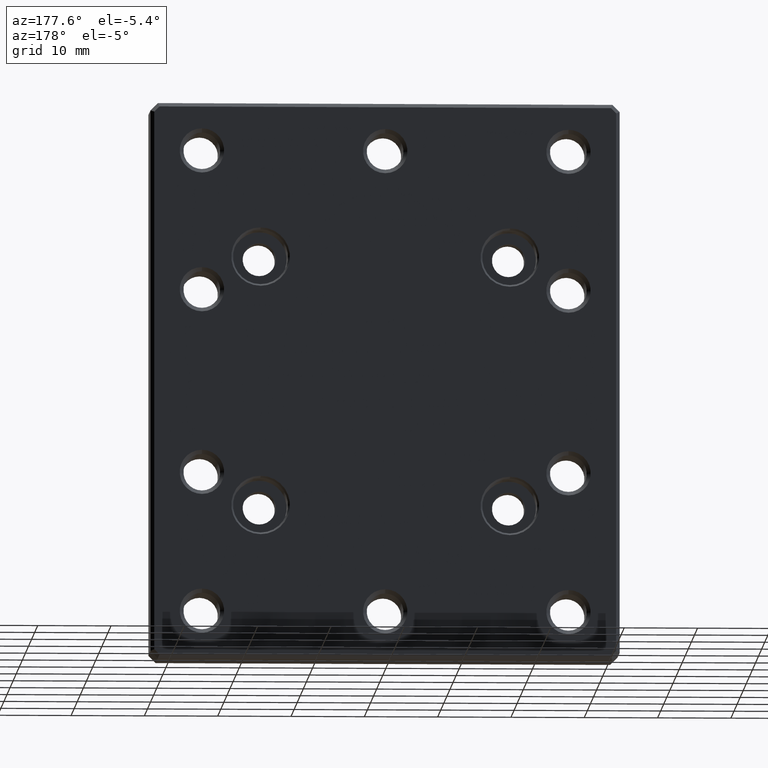
[diagram: clean part render]
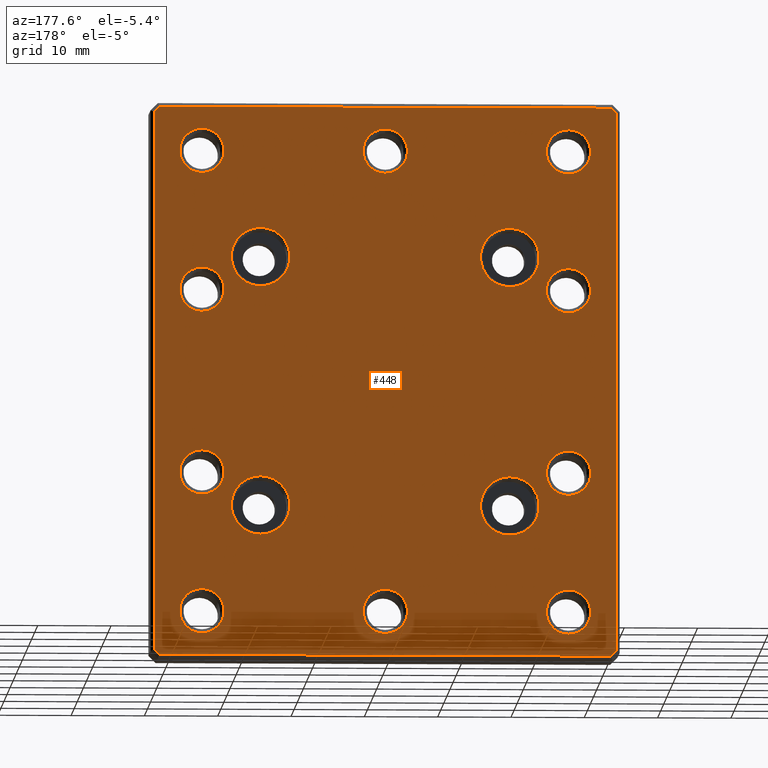
[diagram: same view with one face highlighted and labeled with its STEP entity id]
A machine part, auxiliary view. The second image highlights one B-rep face of the part: STEP entity #448.
In plain terms, the highlighted planar face has unit normal (0, 1, 0).
Its self-contained STEP definition (entity closure, byte-faithful):
#3 = DIRECTION ( 'NONE',  ( -0.000000000000000000, -1.000000000000000000, -0.000000000000000000 ) ) ;
#9 = CIRCLE ( 'NONE', #1178, 3.024999999999999911 ) ;
#12 = CARTESIAN_POINT ( 'NONE',  ( -34.14644660940671628, 8.000000000000000000, -34.14644660940671628 ) ) ;
#24 = CIRCLE ( 'NONE', #797, 3.024999999999999911 ) ;
#30 = CARTESIAN_POINT ( 'NONE',  ( 0.000000000000000000, 8.000000000000000000, -31.49999999999999289 ) ) ;
#33 = AXIS2_PLACEMENT_3D ( 'NONE', #1122, #1379, #632 ) ;
#35 = CARTESIAN_POINT ( 'NONE',  ( -24.99999999999999289, 8.000000000000000000, 31.50000000000000711 ) ) ;
#46 = FACE_BOUND ( 'NONE', #147, .T. ) ;
#47 = ORIENTED_EDGE ( 'NONE', *, *, #1000, .F. ) ;
#49 = CIRCLE ( 'NONE', #1014, 3.024999999999999911 ) ;
#65 = DIRECTION ( 'NONE',  ( 0.000000000000000000, 0.000000000000000000, 1.000000000000000000 ) ) ;
#66 = VECTOR ( 'NONE', #1387, 1000.000000000000000 ) ;
#81 = EDGE_CURVE ( 'NONE', #1496, #1496, #746, .T. ) ;
#93 = AXIS2_PLACEMENT_3D ( 'NONE', #1158, #781, #251 ) ;
#96 = ORIENTED_EDGE ( 'NONE', *, *, #1297, .F. ) ;
#101 = EDGE_CURVE ( 'NONE', #201, #201, #556, .T. ) ;
#106 = EDGE_CURVE ( 'NONE', #212, #212, #1417, .T. ) ;
#108 = ORIENTED_EDGE ( 'NONE', *, *, #410, .F. ) ;
#125 = ORIENTED_EDGE ( 'NONE', *, *, #1139, .T. ) ;
#135 = CIRCLE ( 'NONE', #1196, 4.000000000000031086 ) ;
#142 = DIRECTION ( 'NONE',  ( 0.000000000000000000, 0.000000000000000000, 1.000000000000000000 ) ) ;
#147 = EDGE_LOOP ( 'NONE', ( #96 ) ) ;
#154 = CARTESIAN_POINT ( 'NONE',  ( -24.99999999999999289, 8.000000000000000000, 12.50000000000000000 ) ) ;
#157 = EDGE_CURVE ( 'NONE', #1263, #1304, #484, .T. ) ;
#162 = CIRCLE ( 'NONE', #521, 3.024999999999999911 ) ;
#167 = DIRECTION ( 'NONE',  ( 0.000000000000000000, 0.000000000000000000, 1.000000000000000000 ) ) ;
#175 = EDGE_LOOP ( 'NONE', ( #771 ) ) ;
#178 = AXIS2_PLACEMENT_3D ( 'NONE', #1651, #743, #1378 ) ;
#187 = VECTOR ( 'NONE', #581, 1000.000000000000000 ) ;
#190 = DIRECTION ( 'NONE',  ( -0.000000000000000000, -1.000000000000000000, -0.000000000000000000 ) ) ;
#191 = CARTESIAN_POINT ( 'NONE',  ( 31.00000000000002132, 8.000000000000000000, 37.49999999999996447 ) ) ;
#199 = CARTESIAN_POINT ( 'NONE',  ( -17.00000000000000355, 8.000000000000000000, -17.00000000000000000 ) ) ;
#201 = VERTEX_POINT ( 'NONE', #1145 ) ;
#212 = VERTEX_POINT ( 'NONE', #347 ) ;
#213 = VECTOR ( 'NONE', #1631, 1000.000000000000000 ) ;
#236 = ORIENTED_EDGE ( 'NONE', *, *, #1413, .T. ) ;
#237 = AXIS2_PLACEMENT_3D ( 'NONE', #383, #257, #766 ) ;
#239 = EDGE_LOOP ( 'NONE', ( #259 ) ) ;
#251 = DIRECTION ( 'NONE',  ( 0.000000000000000000, 0.000000000000000000, 1.000000000000000000 ) ) ;
#257 = DIRECTION ( 'NONE',  ( -0.000000000000000000, 1.000000000000000000, -0.000000000000000000 ) ) ;
#259 = ORIENTED_EDGE ( 'NONE', *, *, #106, .T. ) ;
#290 = CARTESIAN_POINT ( 'NONE',  ( -30.79289321881342900, 8.000000000000000000, 37.49999999999996447 ) ) ;
#303 = FACE_BOUND ( 'NONE', #400, .T. ) ;
#313 = CIRCLE ( 'NONE', #93, 3.024999999999999911 ) ;
#317 = FACE_BOUND ( 'NONE', #494, .T. ) ;
#318 = EDGE_LOOP ( 'NONE', ( #1393 ) ) ;
#323 = DIRECTION ( 'NONE',  ( -0.7071067811865525687, 0.000000000000000000, -0.7071067811865425767 ) ) ;
#324 = ORIENTED_EDGE ( 'NONE', *, *, #1254, .T. ) ;
#331 = EDGE_LOOP ( 'NONE', ( #470 ) ) ;
#335 = CARTESIAN_POINT ( 'NONE',  ( 16.99999999999999645, 8.000000000000000000, -16.99999999999999645 ) ) ;
#345 = DIRECTION ( 'NONE',  ( -0.000000000000000000, 1.000000000000000000, -0.000000000000000000 ) ) ;
#347 = CARTESIAN_POINT ( 'NONE',  ( -17.00000000000000355, 8.000000000000000000, -12.99999999999996980 ) ) ;
#354 = CARTESIAN_POINT ( 'NONE',  ( -34.14644660940669496, 8.000000000000000000, 34.14644660940669496 ) ) ;
#357 = EDGE_CURVE ( 'NONE', #1524, #1524, #313, .T. ) ;
#365 = CARTESIAN_POINT ( 'NONE',  ( -31.49999999999998579, 8.000000000000000000, -36.79289321881344677 ) ) ;
#383 = CARTESIAN_POINT ( 'NONE',  ( 25.00000000000000000, 8.000000000000000000, -12.49999999999999645 ) ) ;
#390 = EDGE_LOOP ( 'NONE', ( #47 ) ) ;
#392 = DIRECTION ( 'NONE',  ( 0.000000000000000000, 0.000000000000000000, 1.000000000000000000 ) ) ;
#400 = EDGE_LOOP ( 'NONE', ( #1004 ) ) ;
#406 = DIRECTION ( 'NONE',  ( 0.000000000000000000, 0.000000000000000000, 1.000000000000000000 ) ) ;
#410 = EDGE_CURVE ( 'NONE', #1394, #1394, #617, .T. ) ;
#411 = ORIENTED_EDGE ( 'NONE', *, *, #1171, .T. ) ;
#423 = FACE_BOUND ( 'NONE', #1367, .T. ) ;
#430 = FACE_BOUND ( 'NONE', #239, .T. ) ;
#434 = DIRECTION ( 'NONE',  ( -0.000000000000000000, 1.000000000000000000, -0.000000000000000000 ) ) ;
#438 = VECTOR ( 'NONE', #323, 999.9999999999998863 ) ;
#448 = ADVANCED_FACE ( 'NONE', ( #683, #817, #430, #423, #46, #1574, #303, #566, #837, #317, #1350, #1202, #558, #1090, #1209 ), #1605, .T. ) ;
#461 = CARTESIAN_POINT ( 'NONE',  ( 25.00000000000000000, 8.000000000000000000, -9.474999999999997868 ) ) ;
#470 = ORIENTED_EDGE ( 'NONE', *, *, #584, .T. ) ;
#472 = CARTESIAN_POINT ( 'NONE',  ( -24.99999999999999289, 8.000000000000000000, 15.52500000000000036 ) ) ;
#484 = LINE ( 'NONE', #191, #1157 ) ;
#494 = EDGE_LOOP ( 'NONE', ( #108 ) ) ;
#500 = CARTESIAN_POINT ( 'NONE',  ( 17.00000000000000355, 8.000000000000000000, 21.00000000000003197 ) ) ;
#503 = DIRECTION ( 'NONE',  ( -0.000000000000000000, -1.000000000000000000, -0.000000000000000000 ) ) ;
#521 = AXIS2_PLACEMENT_3D ( 'NONE', #30, #434, #167 ) ;
#533 = DIRECTION ( 'NONE',  ( -0.000000000000000000, -1.000000000000000000, -0.000000000000000000 ) ) ;
#535 = AXIS2_PLACEMENT_3D ( 'NONE', #940, #1082, #823 ) ;
#538 = EDGE_LOOP ( 'NONE', ( #411, #1109, #236, #1182, #993, #324, #579, #125 ) ) ;
#551 = VERTEX_POINT ( 'NONE', #723 ) ;
#553 = EDGE_CURVE ( 'NONE', #1256, #1256, #724, .T. ) ;
#555 = CARTESIAN_POINT ( 'NONE',  ( 30.79289321881343255, 8.000000000000000000, -37.49999999999997868 ) ) ;
#556 = CIRCLE ( 'NONE', #33, 3.024999999999999911 ) ;
#558 = FACE_BOUND ( 'NONE', #1162, .T. ) ;
#562 = DIRECTION ( 'NONE',  ( -0.000000000000000000, 1.000000000000000000, -0.000000000000000000 ) ) ;
#565 = EDGE_LOOP ( 'NONE', ( #1193 ) ) ;
#566 = FACE_BOUND ( 'NONE', #1619, .T. ) ;
#572 = DIRECTION ( 'NONE',  ( 0.7071067811865474617, 0.000000000000000000, -0.7071067811865474617 ) ) ;
#579 = ORIENTED_EDGE ( 'NONE', *, *, #580, .T. ) ;
#580 = EDGE_CURVE ( 'NONE', #939, #1542, #850, .T. ) ;
#581 = DIRECTION ( 'NONE',  ( 9.130123557772669567E-17, 0.000000000000000000, 1.000000000000000000 ) ) ;
#584 = EDGE_CURVE ( 'NONE', #856, #856, #1375, .T. ) ;
#597 = CARTESIAN_POINT ( 'NONE',  ( -31.49999999999997868, 8.000000000000000000, 36.99999999999997868 ) ) ;
#613 = AXIS2_PLACEMENT_3D ( 'NONE', #1521, #345, #1270 ) ;
#617 = CIRCLE ( 'NONE', #1398, 3.024999999999999911 ) ;
#632 = DIRECTION ( 'NONE',  ( 0.000000000000000000, 0.000000000000000000, 1.000000000000000000 ) ) ;
#634 = VECTOR ( 'NONE', #1559, 1000.000000000000114 ) ;
#635 = ORIENTED_EDGE ( 'NONE', *, *, #782, .F. ) ;
#638 = AXIS2_PLACEMENT_3D ( 'NONE', #1174, #3, #392 ) ;
#654 = VERTEX_POINT ( 'NONE', #365 ) ;
#660 = CARTESIAN_POINT ( 'NONE',  ( -16.99999999999999645, 8.000000000000000000, 17.00000000000000000 ) ) ;
#662 = ORIENTED_EDGE ( 'NONE', *, *, #1294, .F. ) ;
#683 = FACE_BOUND ( 'NONE', #331, .T. ) ;
#721 = CARTESIAN_POINT ( 'NONE',  ( -24.99999999999999289, 8.000000000000000000, 34.52500000000000568 ) ) ;
#723 = CARTESIAN_POINT ( 'NONE',  ( -31.49999999999997868, 8.000000000000000000, 36.79289321881341124 ) ) ;
#724 = CIRCLE ( 'NONE', #178, 3.024999999999999911 ) ;
#733 = VERTEX_POINT ( 'NONE', #461 ) ;
#743 = DIRECTION ( 'NONE',  ( -0.000000000000000000, 1.000000000000000000, -0.000000000000000000 ) ) ;
#746 = CIRCLE ( 'NONE', #613, 3.024999999999999911 ) ;
#747 = EDGE_LOOP ( 'NONE', ( #662 ) ) ;
#754 = LINE ( 'NONE', #1010, #438 ) ;
#757 = DIRECTION ( 'NONE',  ( 0.000000000000000000, 0.000000000000000000, 1.000000000000000000 ) ) ;
#764 = CARTESIAN_POINT ( 'NONE',  ( 1.040834085586084257E-14, 8.000000000000000000, 34.52500000000000568 ) ) ;
#766 = DIRECTION ( 'NONE',  ( 0.000000000000000000, 0.000000000000000000, 1.000000000000000000 ) ) ;
#771 = ORIENTED_EDGE ( 'NONE', *, *, #1461, .T. ) ;
#781 = DIRECTION ( 'NONE',  ( -0.000000000000000000, 1.000000000000000000, -0.000000000000000000 ) ) ;
#782 = EDGE_CURVE ( 'NONE', #733, #733, #1507, .T. ) ;
#797 = AXIS2_PLACEMENT_3D ( 'NONE', #35, #562, #1087 ) ;
#798 = VERTEX_POINT ( 'NONE', #1169 ) ;
#804 = EDGE_CURVE ( 'NONE', #1296, #654, #1066, .T. ) ;
#817 = FACE_BOUND ( 'NONE', #175, .T. ) ;
#823 = DIRECTION ( 'NONE',  ( 0.000000000000000000, -0.000000000000000000, 1.000000000000000000 ) ) ;
#837 = FACE_BOUND ( 'NONE', #565, .T. ) ;
#843 = CARTESIAN_POINT ( 'NONE',  ( -31.00000000000001421, 8.000000000000000000, -37.49999999999997868 ) ) ;
#850 = LINE ( 'NONE', #990, #66 ) ;
#853 = CARTESIAN_POINT ( 'NONE',  ( 25.00000000000000711, 8.000000000000000000, 12.50000000000000000 ) ) ;
#856 = VERTEX_POINT ( 'NONE', #878 ) ;
#865 = VERTEX_POINT ( 'NONE', #1148 ) ;
#878 = CARTESIAN_POINT ( 'NONE',  ( 16.99999999999999645, 8.000000000000000000, -12.99999999999996625 ) ) ;
#907 = DIRECTION ( 'NONE',  ( -0.7071067811865474617, 0.000000000000000000, 0.7071067811865474617 ) ) ;
#920 = EDGE_LOOP ( 'NONE', ( #971 ) ) ;
#939 = VERTEX_POINT ( 'NONE', #1324 ) ;
#940 = CARTESIAN_POINT ( 'NONE',  ( 0.000000000000000000, 8.000000000000000000, 0.000000000000000000 ) ) ;
#954 = CARTESIAN_POINT ( 'NONE',  ( 34.14644660940672338, 8.000000000000000000, 34.14644660940672338 ) ) ;
#962 = CARTESIAN_POINT ( 'NONE',  ( -25.00000000000000000, 8.000000000000000000, -31.49999999999999289 ) ) ;
#969 = CARTESIAN_POINT ( 'NONE',  ( 30.79289321881347519, 8.000000000000000000, 37.49999999999996447 ) ) ;
#971 = ORIENTED_EDGE ( 'NONE', *, *, #81, .F. ) ;
#980 = CARTESIAN_POINT ( 'NONE',  ( 0.000000000000000000, 8.000000000000000000, -28.47499999999999432 ) ) ;
#990 = CARTESIAN_POINT ( 'NONE',  ( 31.49999999999996447, 8.000000000000000000, -37.00000000000000711 ) ) ;
#993 = ORIENTED_EDGE ( 'NONE', *, *, #157, .T. ) ;
#1000 = EDGE_CURVE ( 'NONE', #1611, #1611, #162, .T. ) ;
#1004 = ORIENTED_EDGE ( 'NONE', *, *, #357, .F. ) ;
#1010 = CARTESIAN_POINT ( 'NONE',  ( 34.14644660940648890, 8.000000000000000000, -34.14644660940696497 ) ) ;
#1014 = AXIS2_PLACEMENT_3D ( 'NONE', #962, #1471, #142 ) ;
#1016 = CARTESIAN_POINT ( 'NONE',  ( 25.00000000000000000, 8.000000000000000000, -28.47499999999999432 ) ) ;
#1030 = DIRECTION ( 'NONE',  ( -0.000000000000000000, 1.000000000000000000, -0.000000000000000000 ) ) ;
#1034 = CARTESIAN_POINT ( 'NONE',  ( 31.49999999999996447, 8.000000000000000000, -36.79289321881345387 ) ) ;
#1066 = LINE ( 'NONE', #12, #1085 ) ;
#1082 = DIRECTION ( 'NONE',  ( 0.000000000000000000, 1.000000000000000000, 0.000000000000000000 ) ) ;
#1085 = VECTOR ( 'NONE', #907, 1000.000000000000114 ) ;
#1087 = DIRECTION ( 'NONE',  ( 0.000000000000000000, 0.000000000000000000, 1.000000000000000000 ) ) ;
#1090 = FACE_BOUND ( 'NONE', #747, .T. ) ;
#1109 = ORIENTED_EDGE ( 'NONE', *, *, #804, .T. ) ;
#1122 = CARTESIAN_POINT ( 'NONE',  ( -25.00000000000000000, 8.000000000000000000, -12.50000000000000000 ) ) ;
#1139 = EDGE_CURVE ( 'NONE', #1542, #1273, #754, .T. ) ;
#1145 = CARTESIAN_POINT ( 'NONE',  ( -25.00000000000000000, 8.000000000000000000, -9.475000000000001421 ) ) ;
#1148 = CARTESIAN_POINT ( 'NONE',  ( -16.99999999999999645, 8.000000000000000000, 21.00000000000003197 ) ) ;
#1157 = VECTOR ( 'NONE', #1388, 1000.000000000000000 ) ;
#1158 = CARTESIAN_POINT ( 'NONE',  ( 25.00000000000000000, 8.000000000000000000, -31.49999999999999289 ) ) ;
#1162 = EDGE_LOOP ( 'NONE', ( #1606 ) ) ;
#1169 = CARTESIAN_POINT ( 'NONE',  ( 25.00000000000000711, 8.000000000000000000, 15.52500000000000036 ) ) ;
#1171 = EDGE_CURVE ( 'NONE', #1273, #1296, #1481, .T. ) ;
#1174 = CARTESIAN_POINT ( 'NONE',  ( 17.00000000000000355, 8.000000000000000000, 17.00000000000000000 ) ) ;
#1176 = EDGE_CURVE ( 'NONE', #551, #1263, #1509, .T. ) ;
#1178 = AXIS2_PLACEMENT_3D ( 'NONE', #853, #1262, #65 ) ;
#1182 = ORIENTED_EDGE ( 'NONE', *, *, #1176, .T. ) ;
#1193 = ORIENTED_EDGE ( 'NONE', *, *, #101, .F. ) ;
#1196 = AXIS2_PLACEMENT_3D ( 'NONE', #660, #533, #406 ) ;
#1202 = FACE_BOUND ( 'NONE', #920, .T. ) ;
#1204 = EDGE_CURVE ( 'NONE', #865, #865, #135, .T. ) ;
#1209 = FACE_OUTER_BOUND ( 'NONE', #538, .T. ) ;
#1214 = LINE ( 'NONE', #954, #1220 ) ;
#1220 = VECTOR ( 'NONE', #572, 1000.000000000000114 ) ;
#1240 = VERTEX_POINT ( 'NONE', #721 ) ;
#1254 = EDGE_CURVE ( 'NONE', #1304, #939, #1214, .T. ) ;
#1256 = VERTEX_POINT ( 'NONE', #764 ) ;
#1262 = DIRECTION ( 'NONE',  ( -0.000000000000000000, 1.000000000000000000, -0.000000000000000000 ) ) ;
#1263 = VERTEX_POINT ( 'NONE', #290 ) ;
#1270 = DIRECTION ( 'NONE',  ( 0.000000000000000000, 0.000000000000000000, 1.000000000000000000 ) ) ;
#1273 = VERTEX_POINT ( 'NONE', #555 ) ;
#1294 = EDGE_CURVE ( 'NONE', #1240, #1240, #24, .T. ) ;
#1296 = VERTEX_POINT ( 'NONE', #1595 ) ;
#1297 = EDGE_CURVE ( 'NONE', #1620, #1620, #49, .T. ) ;
#1303 = ORIENTED_EDGE ( 'NONE', *, *, #1204, .T. ) ;
#1304 = VERTEX_POINT ( 'NONE', #969 ) ;
#1324 = CARTESIAN_POINT ( 'NONE',  ( 31.49999999999998579, 8.000000000000000000, 36.79289321881345387 ) ) ;
#1350 = FACE_BOUND ( 'NONE', #318, .T. ) ;
#1367 = EDGE_LOOP ( 'NONE', ( #1303 ) ) ;
#1372 = CARTESIAN_POINT ( 'NONE',  ( 25.00000000000001421, 8.000000000000000000, 34.52500000000000568 ) ) ;
#1375 = CIRCLE ( 'NONE', #1478, 4.000000000000031086 ) ;
#1378 = DIRECTION ( 'NONE',  ( 0.000000000000000000, 0.000000000000000000, 1.000000000000000000 ) ) ;
#1379 = DIRECTION ( 'NONE',  ( -0.000000000000000000, 1.000000000000000000, -0.000000000000000000 ) ) ;
#1385 = CARTESIAN_POINT ( 'NONE',  ( -25.00000000000000000, 8.000000000000000000, -28.47499999999999432 ) ) ;
#1387 = DIRECTION ( 'NONE',  ( -2.739037067331800623E-16, 0.000000000000000000, -1.000000000000000000 ) ) ;
#1388 = DIRECTION ( 'NONE',  ( 1.000000000000000000, 0.000000000000000000, 0.000000000000000000 ) ) ;
#1393 = ORIENTED_EDGE ( 'NONE', *, *, #1645, .F. ) ;
#1394 = VERTEX_POINT ( 'NONE', #472 ) ;
#1398 = AXIS2_PLACEMENT_3D ( 'NONE', #154, #1030, #1434 ) ;
#1413 = EDGE_CURVE ( 'NONE', #654, #551, #1628, .T. ) ;
#1417 = CIRCLE ( 'NONE', #1497, 4.000000000000031086 ) ;
#1434 = DIRECTION ( 'NONE',  ( 0.000000000000000000, 0.000000000000000000, 1.000000000000000000 ) ) ;
#1461 = EDGE_CURVE ( 'NONE', #1650, #1650, #1546, .T. ) ;
#1471 = DIRECTION ( 'NONE',  ( -0.000000000000000000, 1.000000000000000000, -0.000000000000000000 ) ) ;
#1478 = AXIS2_PLACEMENT_3D ( 'NONE', #335, #190, #1502 ) ;
#1481 = LINE ( 'NONE', #843, #213 ) ;
#1496 = VERTEX_POINT ( 'NONE', #1372 ) ;
#1497 = AXIS2_PLACEMENT_3D ( 'NONE', #199, #503, #757 ) ;
#1502 = DIRECTION ( 'NONE',  ( 0.000000000000000000, 0.000000000000000000, 1.000000000000000000 ) ) ;
#1507 = CIRCLE ( 'NONE', #237, 3.024999999999999911 ) ;
#1509 = LINE ( 'NONE', #354, #634 ) ;
#1521 = CARTESIAN_POINT ( 'NONE',  ( 25.00000000000001421, 8.000000000000000000, 31.50000000000000711 ) ) ;
#1524 = VERTEX_POINT ( 'NONE', #1016 ) ;
#1542 = VERTEX_POINT ( 'NONE', #1034 ) ;
#1546 = CIRCLE ( 'NONE', #638, 4.000000000000031086 ) ;
#1559 = DIRECTION ( 'NONE',  ( 0.7071067811865474617, 0.000000000000000000, 0.7071067811865474617 ) ) ;
#1574 = FACE_BOUND ( 'NONE', #390, .T. ) ;
#1595 = CARTESIAN_POINT ( 'NONE',  ( -30.79289321881345387, 8.000000000000000000, -37.49999999999997868 ) ) ;
#1605 = PLANE ( 'NONE',  #535 ) ;
#1606 = ORIENTED_EDGE ( 'NONE', *, *, #553, .F. ) ;
#1611 = VERTEX_POINT ( 'NONE', #980 ) ;
#1619 = EDGE_LOOP ( 'NONE', ( #635 ) ) ;
#1620 = VERTEX_POINT ( 'NONE', #1385 ) ;
#1628 = LINE ( 'NONE', #597, #187 ) ;
#1631 = DIRECTION ( 'NONE',  ( -1.000000000000000000, 0.000000000000000000, 0.000000000000000000 ) ) ;
#1645 = EDGE_CURVE ( 'NONE', #798, #798, #9, .T. ) ;
#1650 = VERTEX_POINT ( 'NONE', #500 ) ;
#1651 = CARTESIAN_POINT ( 'NONE',  ( 1.040834085586084257E-14, 8.000000000000000000, 31.50000000000000711 ) ) ;